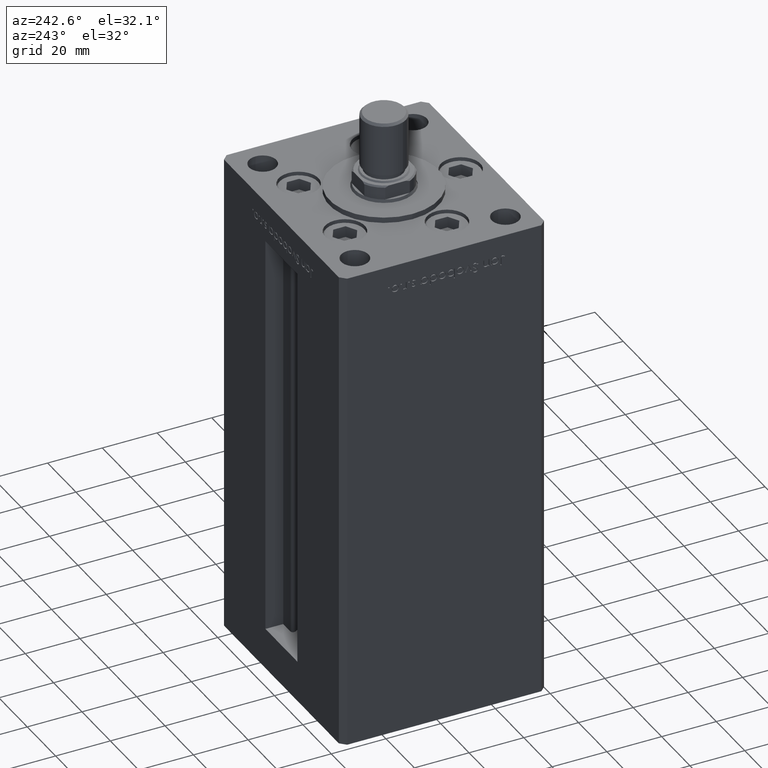
[diagram: clean part render]
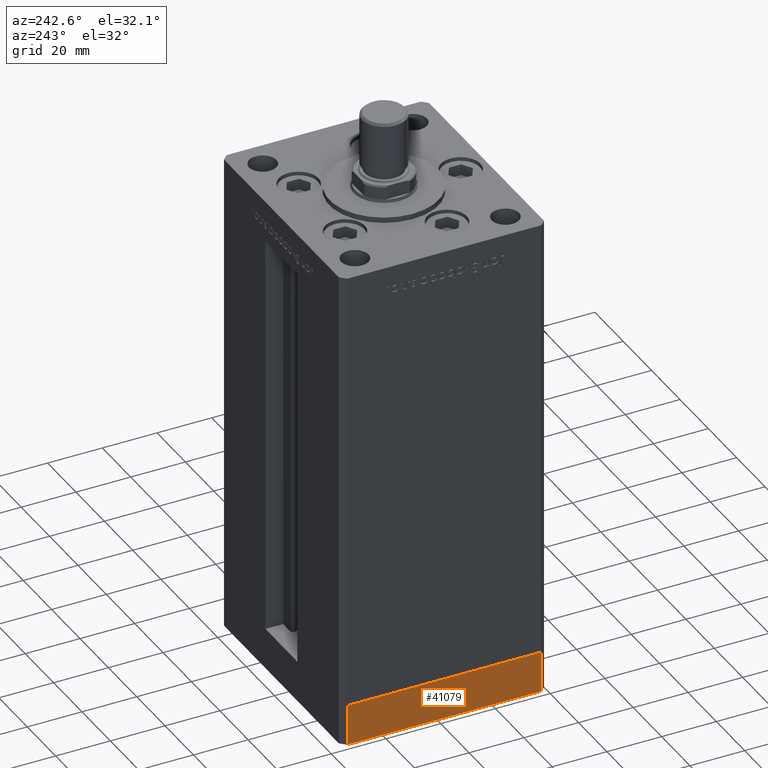
[diagram: same view with one face highlighted and labeled with its STEP entity id]
A machine part, auxiliary view. The second image highlights one B-rep face of the part: STEP entity #41079.
In plain terms, the highlighted planar face has unit normal (-1, 0, 0).
Its self-contained STEP definition (entity closure, byte-faithful):
#743 = DIRECTION ( 'NONE',  ( -1.172770800660376741E-15, 1.000000000000000000, 0.000000000000000000 ) ) ;
#2868 = ORIENTED_EDGE ( 'NONE', *, *, #22273, .T. ) ;
#3192 = EDGE_CURVE ( 'NONE', #5250, #31082, #45000, .T. ) ;
#5250 = VERTEX_POINT ( 'NONE', #33017 ) ;
#7127 = VECTOR ( 'NONE', #743, 1000.000000000000000 ) ;
#11831 = CARTESIAN_POINT ( 'NONE',  ( 42.49999999999992895, 35.50000000000000000, -15.00000000000000000 ) ) ;
#11959 = VECTOR ( 'NONE', #51912, 1000.000000000000000 ) ;
#12451 = DIRECTION ( 'NONE',  ( 1.000000000000000000, 1.172770800660376741E-15, -0.000000000000000000 ) ) ;
#13474 = EDGE_CURVE ( 'NONE', #18742, #45185, #21128, .T. ) ;
#16437 = CARTESIAN_POINT ( 'NONE',  ( 42.50000000000000711, -35.50000000000000000, -15.00000000000000000 ) ) ;
#16877 = EDGE_CURVE ( 'NONE', #31082, #45185, #37338, .T. ) ;
#17150 = DIRECTION ( 'NONE',  ( 0.000000000000000000, 0.000000000000000000, 1.000000000000000000 ) ) ;
#18742 = VERTEX_POINT ( 'NONE', #11831 ) ;
#20416 = PLANE ( 'NONE',  #23873 ) ;
#21128 = LINE ( 'NONE', #37316, #27367 ) ;
#22273 = EDGE_CURVE ( 'NONE', #5250, #18742, #39889, .T. ) ;
#23695 = CARTESIAN_POINT ( 'NONE',  ( 42.50000000000000711, -35.50000000000000000, 0.000000000000000000 ) ) ;
#23873 = AXIS2_PLACEMENT_3D ( 'NONE', #16437, #12451, #32633 ) ;
#25872 = EDGE_LOOP ( 'NONE', ( #37788, #48030, #2868, #30731 ) ) ;
#27367 = VECTOR ( 'NONE', #17150, 1000.000000000000000 ) ;
#28589 = CARTESIAN_POINT ( 'NONE',  ( 42.50000000000000711, -35.50000000000000000, -15.00000000000000000 ) ) ;
#30731 = ORIENTED_EDGE ( 'NONE', *, *, #13474, .T. ) ;
#31082 = VERTEX_POINT ( 'NONE', #23695 ) ;
#32451 = DIRECTION ( 'NONE',  ( -1.172770800660376741E-15, 1.000000000000000000, 0.000000000000000000 ) ) ;
#32633 = DIRECTION ( 'NONE',  ( -1.172770800660376741E-15, 1.000000000000000000, 0.000000000000000000 ) ) ;
#33017 = CARTESIAN_POINT ( 'NONE',  ( 42.50000000000000711, -35.50000000000000000, -15.00000000000000000 ) ) ;
#33638 = CARTESIAN_POINT ( 'NONE',  ( 42.50000000000000711, -35.50000000000000000, 0.000000000000000000 ) ) ;
#37316 = CARTESIAN_POINT ( 'NONE',  ( 42.49999999999992895, 35.50000000000000000, -15.00000000000000000 ) ) ;
#37338 = LINE ( 'NONE', #33638, #7127 ) ;
#37490 = CARTESIAN_POINT ( 'NONE',  ( 42.49999999999992895, 35.50000000000000000, 0.000000000000000000 ) ) ;
#37788 = ORIENTED_EDGE ( 'NONE', *, *, #16877, .F. ) ;
#39505 = VECTOR ( 'NONE', #32451, 1000.000000000000000 ) ;
#39889 = LINE ( 'NONE', #44383, #39505 ) ;
#41079 = ADVANCED_FACE ( 'NONE', ( #41376 ), #20416, .T. ) ;
#41376 = FACE_OUTER_BOUND ( 'NONE', #25872, .T. ) ;
#44383 = CARTESIAN_POINT ( 'NONE',  ( 42.50000000000000711, -35.50000000000000000, -15.00000000000000000 ) ) ;
#45000 = LINE ( 'NONE', #28589, #11959 ) ;
#45185 = VERTEX_POINT ( 'NONE', #37490 ) ;
#48030 = ORIENTED_EDGE ( 'NONE', *, *, #3192, .F. ) ;
#51912 = DIRECTION ( 'NONE',  ( 0.000000000000000000, 0.000000000000000000, 1.000000000000000000 ) ) ;